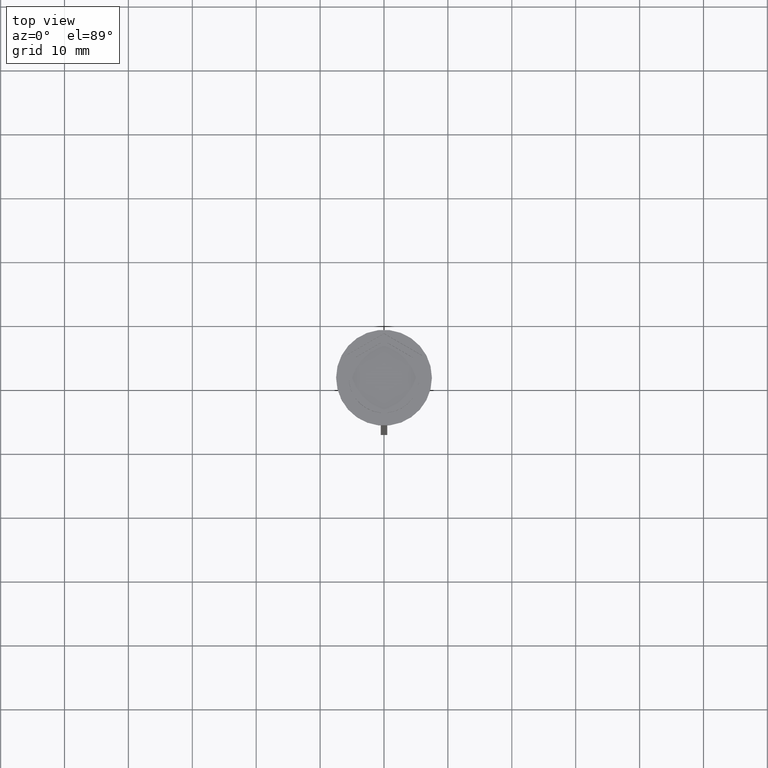
[diagram: clean part render]
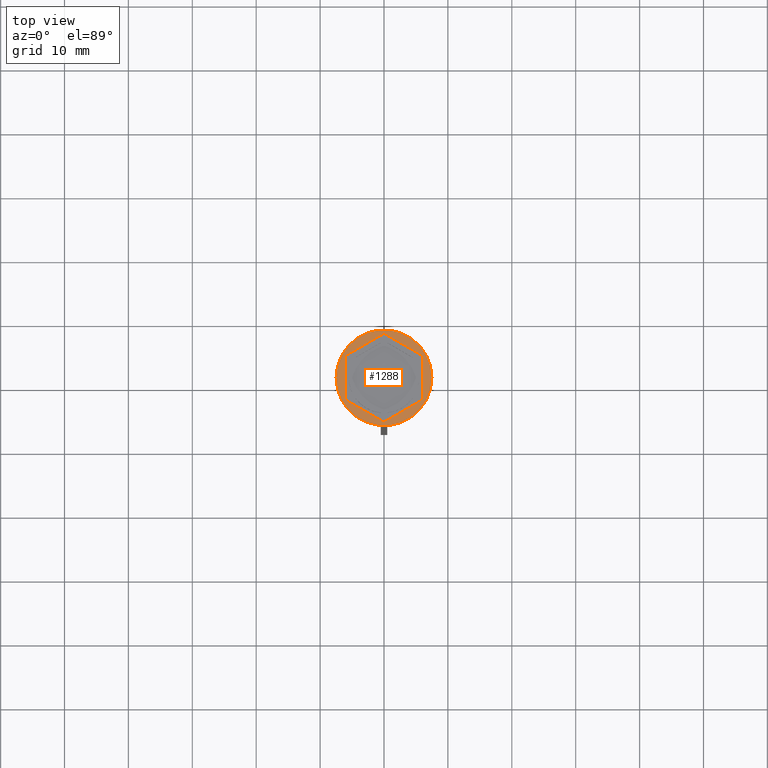
[diagram: same view with one face highlighted and labeled with its STEP entity id]
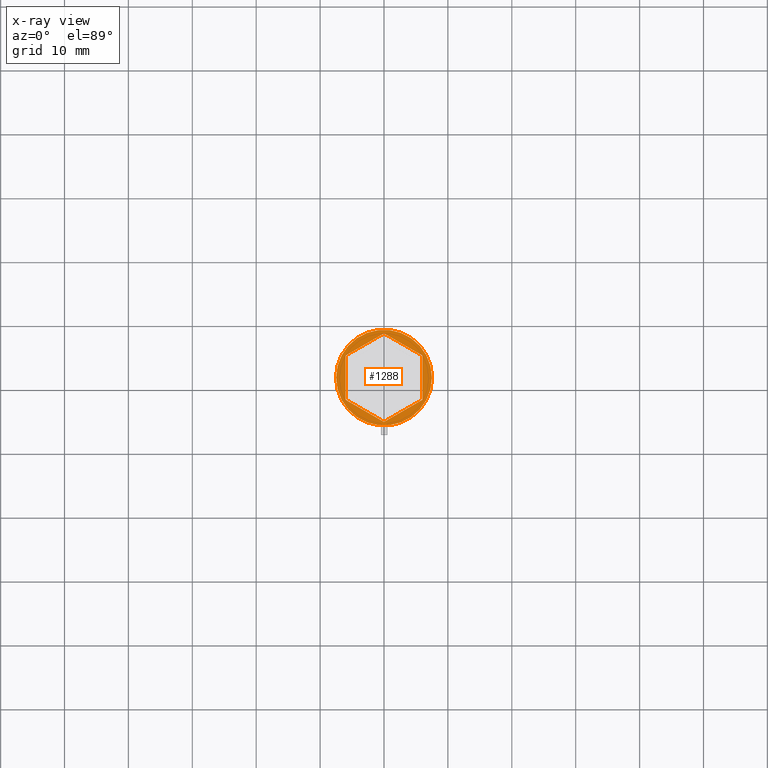
[diagram: x-ray of the same camera — body ghosted, the highlighted face saturated]
A machine part, top view. The second image highlights one B-rep face of the part: STEP entity #1288.
The next image is the same camera in x-ray: the body ghosted, the highlighted face saturated — about 0% of this face is hidden behind the body in this view.
In plain terms, the highlighted planar face has unit normal (0, -0, 1).
Its self-contained STEP definition (entity closure, byte-faithful):
#26 = DIRECTION ( 'NONE',  ( -0.8660254037844385966, -0.4999999999999998890, 0.000000000000000000 ) ) ;
#40 = ORIENTED_EDGE ( 'NONE', *, *, #1150, .F. ) ;
#107 = ORIENTED_EDGE ( 'NONE', *, *, #1369, .F. ) ;
#110 = DIRECTION ( 'NONE',  ( 1.000000000000000000, 0.000000000000000000, 0.000000000000000000 ) ) ;
#116 = VERTEX_POINT ( 'NONE', #1184 ) ;
#185 = ORIENTED_EDGE ( 'NONE', *, *, #2362, .T. ) ;
#203 = CARTESIAN_POINT ( 'NONE',  ( 0.000000000000000000, 6.928203230275506996, 0.000000000000000000 ) ) ;
#204 = DIRECTION ( 'NONE',  ( -0.000000000000000000, -0.000000000000000000, 1.000000000000000000 ) ) ;
#211 = VERTEX_POINT ( 'NONE', #2493 ) ;
#231 = CARTESIAN_POINT ( 'NONE',  ( -6.000000000000000000, 3.464101615137752166, 0.000000000000000000 ) ) ;
#288 = EDGE_CURVE ( 'NONE', #2153, #116, #2204, .T. ) ;
#325 = DIRECTION ( 'NONE',  ( 0.8660254037844385966, 0.5000000000000000000, 0.000000000000000000 ) ) ;
#396 = LINE ( 'NONE', #231, #720 ) ;
#451 = LINE ( 'NONE', #1223, #519 ) ;
#519 = VECTOR ( 'NONE', #2060, 1000.000000000000000 ) ;
#574 = EDGE_CURVE ( 'NONE', #1274, #795, #451, .T. ) ;
#577 = AXIS2_PLACEMENT_3D ( 'NONE', #2116, #204, #1304 ) ;
#579 = CARTESIAN_POINT ( 'NONE',  ( -6.000000000000000000, 3.464101615137752166, 0.000000000000000000 ) ) ;
#634 = CARTESIAN_POINT ( 'NONE',  ( 0.000000000000000000, 0.000000000000000000, 0.000000000000000000 ) ) ;
#675 = ORIENTED_EDGE ( 'NONE', *, *, #574, .F. ) ;
#720 = VECTOR ( 'NONE', #811, 1000.000000000000000 ) ;
#743 = EDGE_CURVE ( 'NONE', #211, #2172, #2246, .T. ) ;
#763 = CARTESIAN_POINT ( 'NONE',  ( 5.999999999999998224, -3.464101615137753942, 0.000000000000000000 ) ) ;
#795 = VERTEX_POINT ( 'NONE', #1468 ) ;
#811 = DIRECTION ( 'NONE',  ( 0.000000000000000000, -1.000000000000000000, 0.000000000000000000 ) ) ;
#828 = FACE_OUTER_BOUND ( 'NONE', #2358, .T. ) ;
#850 = ORIENTED_EDGE ( 'NONE', *, *, #944, .F. ) ;
#859 = CARTESIAN_POINT ( 'NONE',  ( 5.999999999999998224, -3.464101615137753942, 0.000000000000000000 ) ) ;
#875 = CARTESIAN_POINT ( 'NONE',  ( -4.280685092543093048E-16, -6.928203230275507885, 0.000000000000000000 ) ) ;
#877 = EDGE_CURVE ( 'NONE', #1569, #211, #396, .T. ) ;
#944 = EDGE_CURVE ( 'NONE', #1941, #1274, #2437, .T. ) ;
#953 = ORIENTED_EDGE ( 'NONE', *, *, #877, .F. ) ;
#1005 = FACE_BOUND ( 'NONE', #1177, .T. ) ;
#1027 = CARTESIAN_POINT ( 'NONE',  ( 0.000000000000000000, 0.000000000000000000, 0.000000000000000000 ) ) ;
#1049 = AXIS2_PLACEMENT_3D ( 'NONE', #634, #1792, #110 ) ;
#1121 = ORIENTED_EDGE ( 'NONE', *, *, #743, .F. ) ;
#1150 = EDGE_CURVE ( 'NONE', #795, #1569, #2066, .T. ) ;
#1177 = EDGE_LOOP ( 'NONE', ( #675, #850, #107, #1121, #953, #40 ) ) ;
#1184 = CARTESIAN_POINT ( 'NONE',  ( -7.500000000000000000, 9.184850993605147944E-16, 0.000000000000000000 ) ) ;
#1223 = CARTESIAN_POINT ( 'NONE',  ( 6.000000000000000000, 3.464101615137753942, 0.000000000000000000 ) ) ;
#1253 = CARTESIAN_POINT ( 'NONE',  ( -6.000000000000000000, -3.464101615137755719, 0.000000000000000000 ) ) ;
#1266 = CARTESIAN_POINT ( 'NONE',  ( -4.280685092543093048E-16, -6.928203230275507885, 0.000000000000000000 ) ) ;
#1274 = VERTEX_POINT ( 'NONE', #2347 ) ;
#1288 = ADVANCED_FACE ( 'NONE', ( #1005, #828 ), #1585, .T. ) ;
#1304 = DIRECTION ( 'NONE',  ( 1.000000000000000000, 0.000000000000000000, 0.000000000000000000 ) ) ;
#1326 = VECTOR ( 'NONE', #26, 1000.000000000000227 ) ;
#1360 = DIRECTION ( 'NONE',  ( 2.503857664561932376E-16, 1.000000000000000000, 0.000000000000000000 ) ) ;
#1369 = EDGE_CURVE ( 'NONE', #2172, #1941, #2011, .T. ) ;
#1397 = AXIS2_PLACEMENT_3D ( 'NONE', #1027, #1759, #1730 ) ;
#1468 = CARTESIAN_POINT ( 'NONE',  ( 0.000000000000000000, 6.928203230275506996, 0.000000000000000000 ) ) ;
#1568 = VECTOR ( 'NONE', #1360, 1000.000000000000000 ) ;
#1569 = VERTEX_POINT ( 'NONE', #579 ) ;
#1573 = VECTOR ( 'NONE', #325, 1000.000000000000227 ) ;
#1585 = PLANE ( 'NONE',  #1049 ) ;
#1730 = DIRECTION ( 'NONE',  ( 1.000000000000000000, 0.000000000000000000, 0.000000000000000000 ) ) ;
#1759 = DIRECTION ( 'NONE',  ( -0.000000000000000000, -0.000000000000000000, 1.000000000000000000 ) ) ;
#1792 = DIRECTION ( 'NONE',  ( 0.000000000000000000, -0.000000000000000000, 1.000000000000000000 ) ) ;
#1793 = VECTOR ( 'NONE', #1837, 1000.000000000000114 ) ;
#1837 = DIRECTION ( 'NONE',  ( 0.8660254037844388186, -0.4999999999999997224, 0.000000000000000000 ) ) ;
#1941 = VERTEX_POINT ( 'NONE', #763 ) ;
#2011 = LINE ( 'NONE', #1266, #1573 ) ;
#2060 = DIRECTION ( 'NONE',  ( -0.8660254037844387076, 0.4999999999999998335, 0.000000000000000000 ) ) ;
#2066 = LINE ( 'NONE', #203, #1326 ) ;
#2116 = CARTESIAN_POINT ( 'NONE',  ( 0.000000000000000000, 0.000000000000000000, 0.000000000000000000 ) ) ;
#2144 = CIRCLE ( 'NONE', #577, 7.500000000000000000 ) ;
#2153 = VERTEX_POINT ( 'NONE', #2227 ) ;
#2172 = VERTEX_POINT ( 'NONE', #875 ) ;
#2204 = CIRCLE ( 'NONE', #1397, 7.500000000000000000 ) ;
#2227 = CARTESIAN_POINT ( 'NONE',  ( 7.500000000000000000, 0.000000000000000000, 0.000000000000000000 ) ) ;
#2246 = LINE ( 'NONE', #1253, #1793 ) ;
#2347 = CARTESIAN_POINT ( 'NONE',  ( 6.000000000000000000, 3.464101615137753942, 0.000000000000000000 ) ) ;
#2358 = EDGE_LOOP ( 'NONE', ( #2471, #185 ) ) ;
#2362 = EDGE_CURVE ( 'NONE', #116, #2153, #2144, .T. ) ;
#2437 = LINE ( 'NONE', #859, #1568 ) ;
#2471 = ORIENTED_EDGE ( 'NONE', *, *, #288, .T. ) ;
#2493 = CARTESIAN_POINT ( 'NONE',  ( -6.000000000000000000, -3.464101615137755719, 0.000000000000000000 ) ) ;